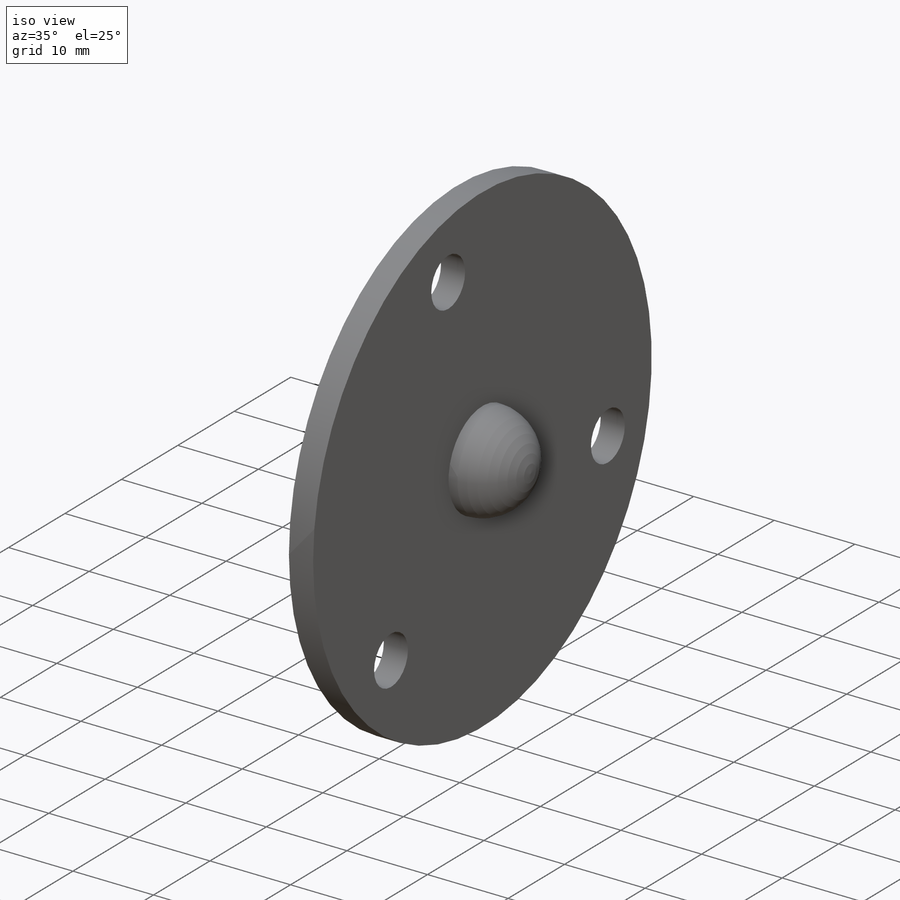
[diagram: iso view]
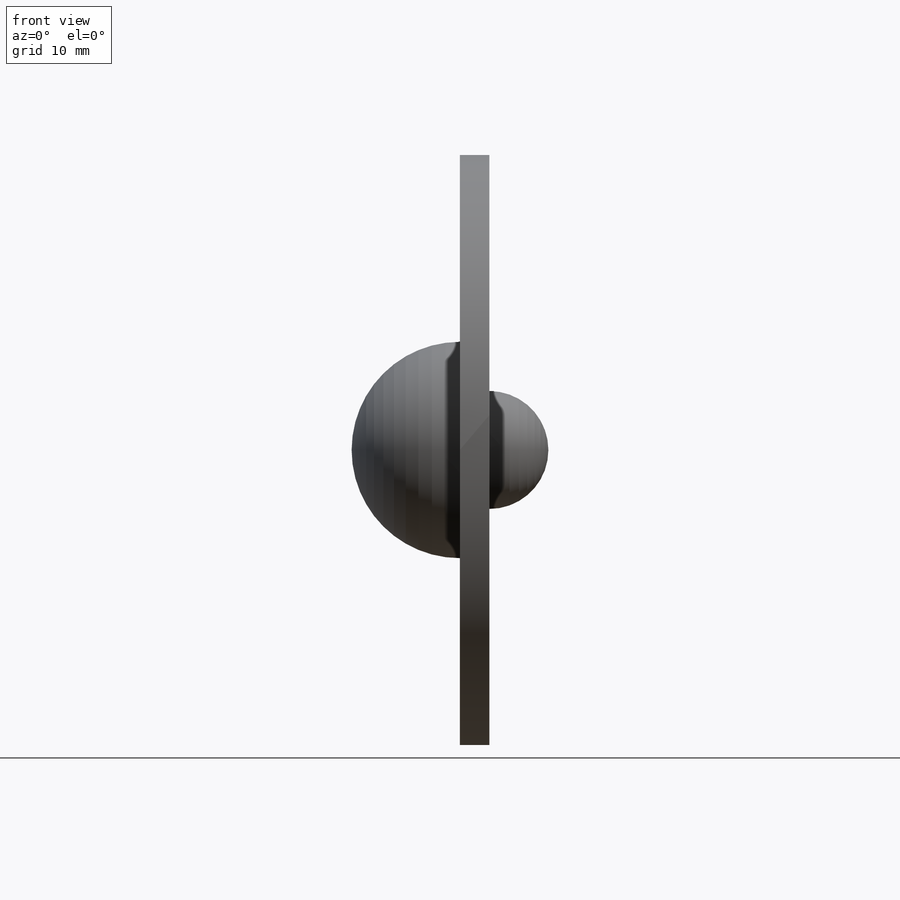
[diagram: front view]
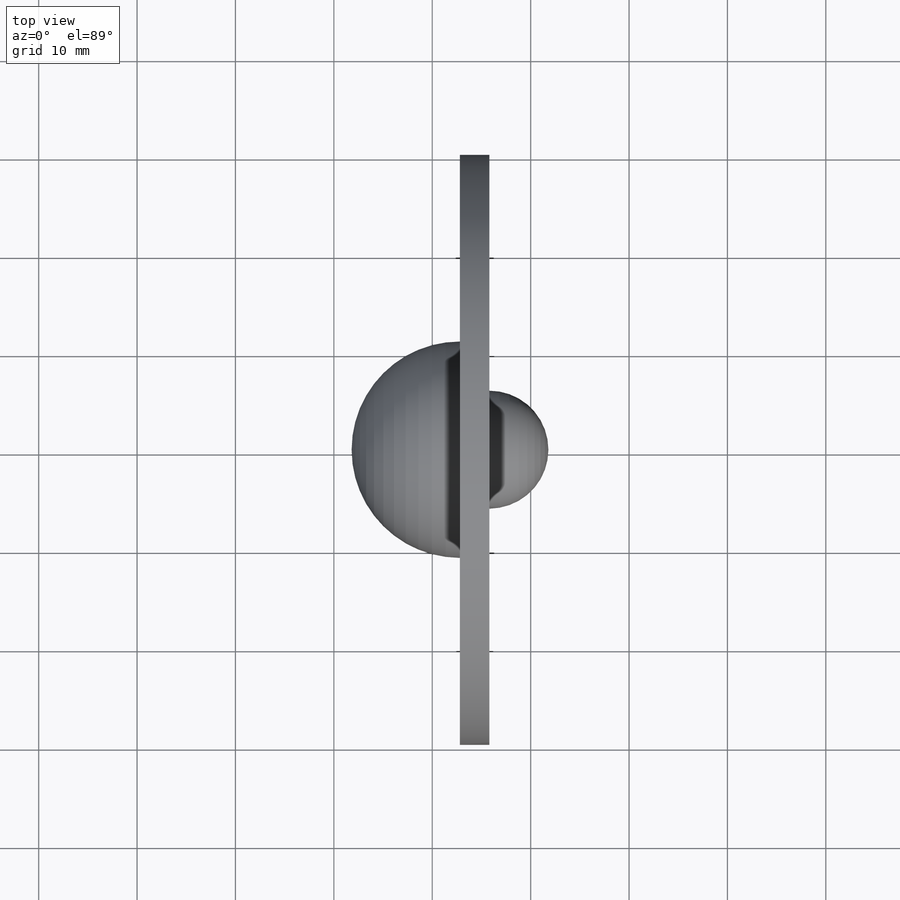
[diagram: top view]
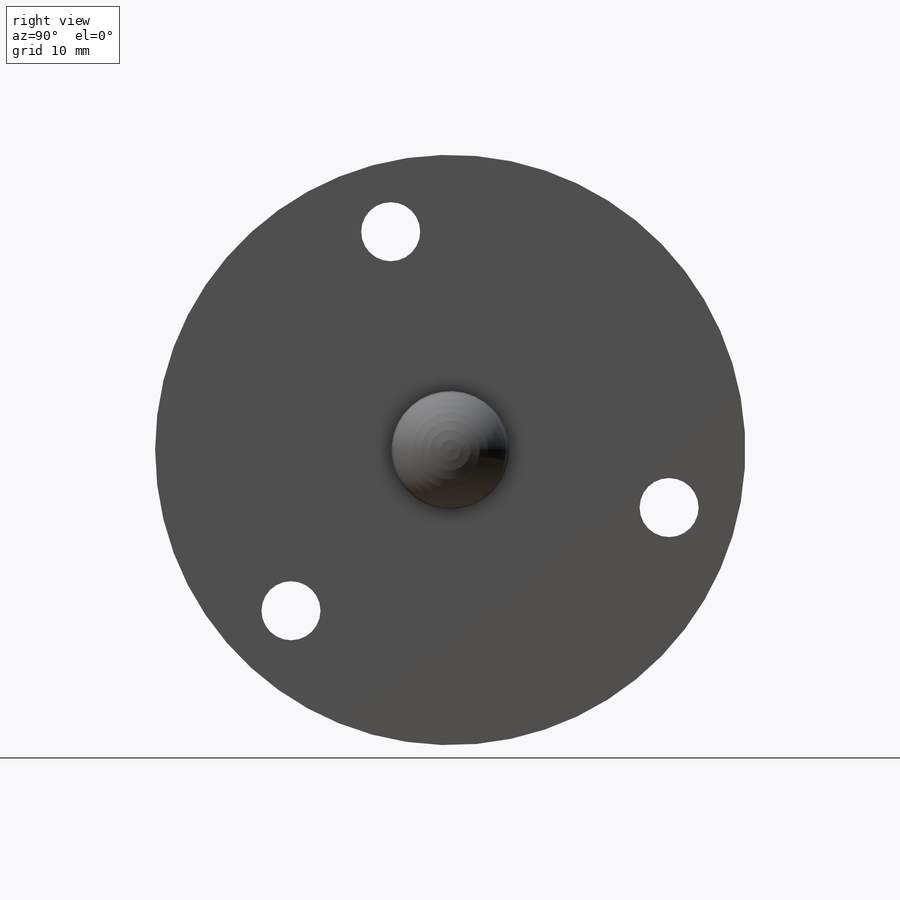
[diagram: right view]
SOLIDWORKS PART (.sldprt)
format: sldprt  version: not decoded by parser v0  size: 179,712 bytes
history: native  units: mm
features: plane x3, sketch x2, material x1, revolve x1, cut_extrude x1, pattern_circular x1 (+10 scaffold rows collapsed)
feature tree (19):
  scaffold x10  (default folders/planes/origin — collapsed)
  material  "3.0205 (EN-AW 1200)"
  plane  "Plan de face"
  plane  "Plan de dessus"
  plane  "Plan de droite"
  sketch  "Esquisse2"  dims[D1=11.0mm D2=6.0mm D3=3.0mm D4=30.0mm]
  revolve  "Révolution1"  Angle=360deg
  sketch  "Esquisse3"  dims[D1=6.0mm D2=23.0mm]
  cut_extrude  "Enlèv. mat.-Extru.1"  Depth=10mm
  pattern_circular  "Répétition circulaire1"  Count=3  [1 undecoded]
decode coverage: 5 of 5 modeling features carry decoded parameters
note: 1 parameter value undecoded
note: suppression state not decoded; provenance and decode notes live in map.json
